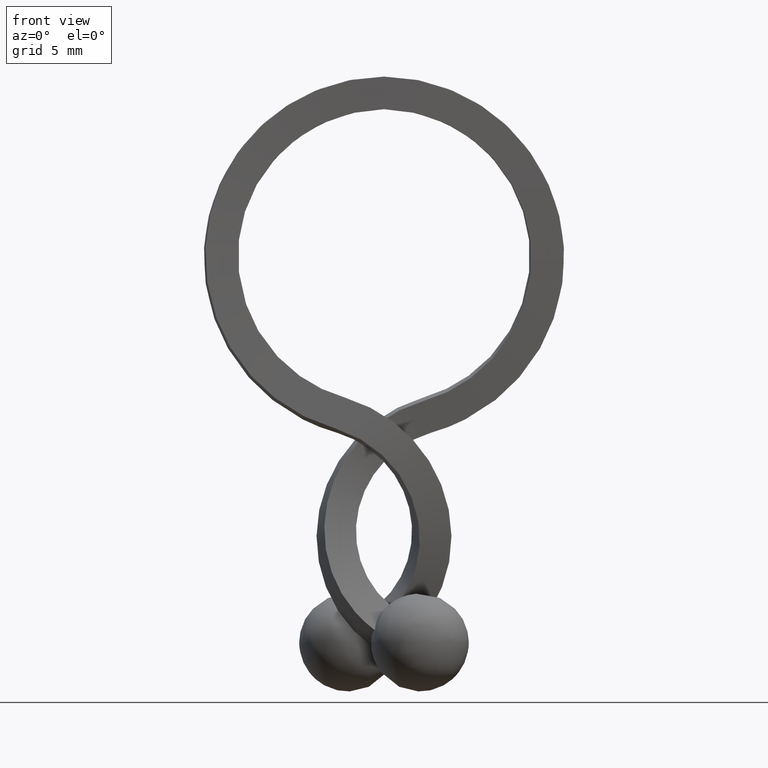
[diagram: clean part render]
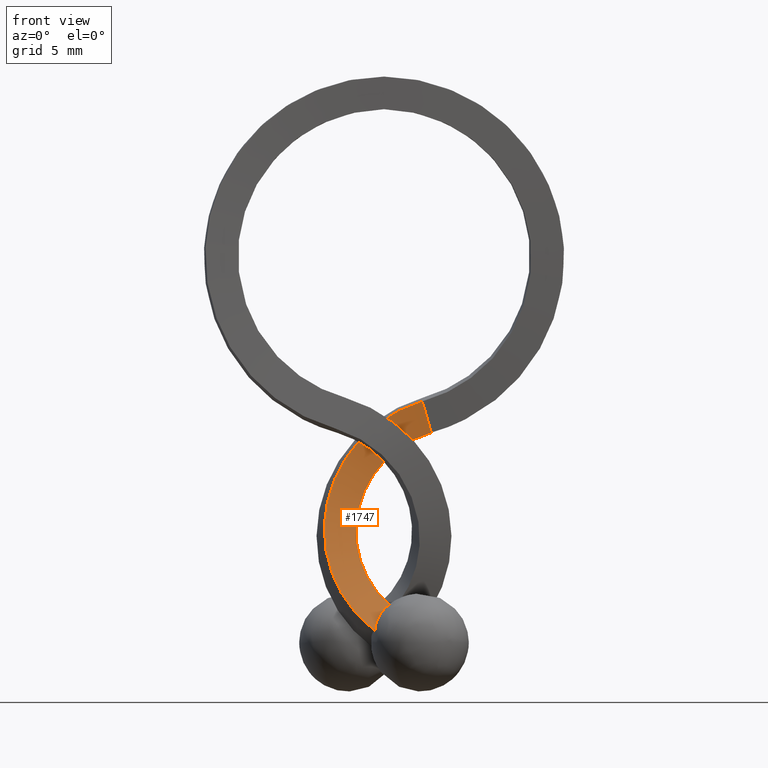
[diagram: same view with one face highlighted and labeled with its STEP entity id]
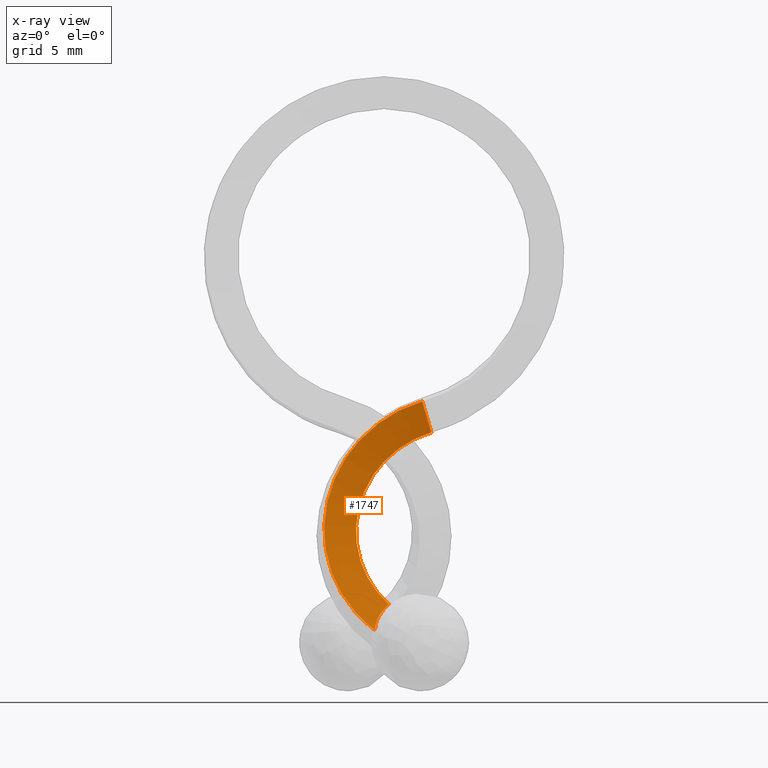
[diagram: x-ray of the same camera — body ghosted, the highlighted face saturated]
A machine part, front view. The second image highlights one B-rep face of the part: STEP entity #1747.
The next image is the same camera in x-ray: the body ghosted, the highlighted face saturated — about 0% of this face is hidden behind the body in this view.
In plain terms, the highlighted face is a freeform B-spline surface patch.
Its self-contained STEP definition (entity closure, byte-faithful):
#207=CARTESIAN_POINT('',(-0.562989896993317,-2.993018793894280,-22.946073593699801));
#208=VERTEX_POINT('',#207);
#247=CARTESIAN_POINT('',(0.318826998031104,-1.991292330400900,-21.365611254917500));
#248=VERTEX_POINT('',#247);
#262=CARTESIAN_POINT('',(0.318826998031104,-1.991292330400900,-21.365611254917500));
#263=CARTESIAN_POINT('',(0.254987021193123,-2.027606866331576,-21.415365773943190));
#264=CARTESIAN_POINT('',(0.194190312748545,-2.064897113913454,-21.467668564391371));
#265=CARTESIAN_POINT('',(0.078609582324111,-2.141398444247728,-21.577313679062151));
#266=CARTESIAN_POINT('',(0.023749002954571,-2.180669582220872,-21.634745300141720));
#267=CARTESIAN_POINT('',(-0.131193199032403,-2.301055194665985,-21.814124364339602));
#268=CARTESIAN_POINT('',(-0.219965570910712,-2.383308522431403,-21.940992873367041));
#269=CARTESIAN_POINT('',(-0.332055683822324,-2.509865839651787,-22.141682061896589));
#270=CARTESIAN_POINT('',(-0.365884398976530,-2.552586264016554,-22.210319979133669));
#271=CARTESIAN_POINT('',(-0.426313912798095,-2.639188689276759,-22.351113633898290));
#272=CARTESIAN_POINT('',(-0.452999293889169,-2.683262658169256,-22.423591017506070));
#273=CARTESIAN_POINT('',(-0.520796711269644,-2.815548652972138,-22.643336727853569));
#274=CARTESIAN_POINT('',(-0.550034096460363,-2.903981628331271,-22.793129962072829));
#275=CARTESIAN_POINT('',(-0.562989896993317,-2.993018793894280,-22.946073593699801));
#276=B_SPLINE_CURVE_WITH_KNOTS('',3,(#262,#263,#264,#265,#266,#267,#268,#269,#270,#271,#272,#273,#274,#275),.UNSPECIFIED.,.F.,.U.,(4,2,2,2,2,2,4),(0.0,0.124999999999999,0.249999999999998,0.499999999999998,0.624999999999999,0.749999999999999,1.0),.UNSPECIFIED.);
#277=EDGE_CURVE('',#248,#208,#276,.T.);
#1202=CARTESIAN_POINT('',(2.343019980547970,-0.026249401664831,-8.919620267446240));
#1203=VERTEX_POINT('',#1202);
#1304=CARTESIAN_POINT('',(2.901770497624195,0.185794630355313,-10.828303356464280));
#1305=VERTEX_POINT('',#1304);
#1306=CARTESIAN_POINT('',(2.343019980547970,-0.026249401664831,-8.919620267446240));
#1307=CARTESIAN_POINT('',(2.390476096541876,-0.008236811523220,-9.081758698906494));
#1308=CARTESIAN_POINT('',(2.437932200781543,0.009775782775392,-9.243897133344509));
#1309=CARTESIAN_POINT('',(2.485389682380470,0.027788348679909,-9.406035168364841));
#1310=CARTESIAN_POINT('',(2.532847163982464,0.045800914585591,-9.568173203395647));
#1311=CARTESIAN_POINT('',(2.580306013627685,0.063813452317270,-9.730310841732020));
#1312=CARTESIAN_POINT('',(2.627767853168932,0.081825923876188,-9.892447613443228));
#1313=CARTESIAN_POINT('',(2.719086018244425,0.116482520989441,-10.204404179540180));
#1314=CARTESIAN_POINT('',(2.810414561498153,0.151138889379695,-10.516357738549470));
#1315=CARTESIAN_POINT('',(2.901770497624195,0.185794630355313,-10.828303356464280));
#1316=B_SPLINE_CURVE_WITH_KNOTS('',3,(#1306,#1307,#1308,#1309,#1310,#1311,#1312,#1313,#1314,#1315),.UNSPECIFIED.,.F.,.U.,(4,3,3,4),(0.0,0.000509692035208,0.001019384070476,0.002000048577367),.UNSPECIFIED.);
#1317=EDGE_CURVE('',#1203,#1305,#1316,.T.);
#1602=CARTESIAN_POINT('',(2.343019980547970,-0.026249401664831,-8.919620267446240));
#1603=CARTESIAN_POINT('',(2.328873158148021,-0.025424552240254,-8.923833127507283));
#1604=CARTESIAN_POINT('',(2.314454788468011,-0.024585064959228,-8.928131868227892));
#1605=CARTESIAN_POINT('',(2.102724740778106,-0.012282224094438,-8.991361900011517));
#1606=CARTESIAN_POINT('',(1.887861882150655,-0.001958220313909,-9.064595574533961));
#1607=CARTESIAN_POINT('',(1.484445463366080,0.013149086828943,-9.220042203482507));
#1608=CARTESIAN_POINT('',(1.285685964906115,0.018477122987230,-9.305505683612408));
#1609=CARTESIAN_POINT('',(0.700010365309183,0.027742017279396,-9.584341388283615));
#1610=CARTESIAN_POINT('',(0.323713400784969,0.024944345095048,-9.800214340787839));
#1611=CARTESIAN_POINT('',(-0.748541599144377,-0.010255868453404,-10.529605563832639));
#1612=CARTESIAN_POINT('',(-1.386859524459401,-0.069622496764861,-11.125009821918690));
#1613=CARTESIAN_POINT('',(-2.980817194532098,-0.346910563989227,-13.153331408402520));
#1614=CARTESIAN_POINT('',(-3.599769519285019,-0.666432502432129,-14.829968625182101));
#1615=CARTESIAN_POINT('',(-3.715702373559793,-1.453695651395375,-18.196599076363089));
#1616=CARTESIAN_POINT('',(-3.212376982986500,-1.919359455819912,-19.877708548537061));
#1617=CARTESIAN_POINT('',(-1.778579756744054,-2.584232713626742,-21.890038046632839));
#1618=CARTESIAN_POINT('',(-1.208975882375264,-2.795219975416260,-22.466446165435251));
#1619=CARTESIAN_POINT('',(-0.562989896993317,-2.993018793894280,-22.946073593699801));
#1620=B_SPLINE_CURVE_WITH_KNOTS('',3,(#1602,#1603,#1604,#1605,#1606,#1607,#1608,#1609,#1610,#1611,#1612,#1613,#1614,#1615,#1616,#1617,#1618,#1619),.UNSPECIFIED.,.F.,.U.,(4,2,2,2,2,2,2,2,4),(-0.002363725979825,0.0,0.031250000000000,0.062500000000000,0.125000000000000,0.250000000000000,0.500000000000000,0.750000000000000,0.869828844565417),.UNSPECIFIED.);
#1621=EDGE_CURVE('',#1203,#208,#1620,.T.);
#1648=CARTESIAN_POINT('',(3.031046235579531,0.178247301782421,-10.789846652980369));
#1649=CARTESIAN_POINT('',(2.832658385266442,0.108273610588086,-10.157232528305631));
#1650=CARTESIAN_POINT('',(2.634270534953358,0.038299919393754,-9.524618403630928));
#1651=CARTESIAN_POINT('',(2.435882684640277,-0.031673771800581,-8.892004278956225));
#1652=CARTESIAN_POINT('',(2.984612750295062,0.180958383505011,-10.803658750317339));
#1653=CARTESIAN_POINT('',(2.786701742206361,0.110958237086650,-10.170896968513199));
#1654=CARTESIAN_POINT('',(2.588790734117672,0.040958090668294,-9.538135186709090));
#1655=CARTESIAN_POINT('',(2.390879726028985,-0.029042055750066,-8.905373404904996));
#1656=CARTESIAN_POINT('',(2.935828042283705,0.183806793798505,-10.818170035292169));
#1657=CARTESIAN_POINT('',(2.739778221201616,0.113699811211099,-10.184846938185739));
#1658=CARTESIAN_POINT('',(2.543728400119547,0.043592828623699,-9.551523841079373));
#1659=CARTESIAN_POINT('',(2.347678579037474,-0.026514153963706,-8.918200743973044));
#1660=CARTESIAN_POINT('',(2.720222783918400,0.196391471020903,-10.882319581714119));
#1661=CARTESIAN_POINT('',(2.514389286534440,0.126834090048751,-10.251997511912620));
#1662=CARTESIAN_POINT('',(2.308555789150435,0.057276709076579,-9.621675442110979));
#1663=CARTESIAN_POINT('',(2.102722291766435,-0.012280671895573,-8.991353372309149));
#1664=CARTESIAN_POINT('',(2.575560613172110,0.203242635793602,-10.932044718042460));
#1665=CARTESIAN_POINT('',(2.346326892726685,0.134842863874018,-10.309558849340020));
#1666=CARTESIAN_POINT('',(2.117093172281220,0.066443091954435,-9.687072980637739));
#1667=CARTESIAN_POINT('',(1.887859451835715,-0.001956679965148,-9.064587111935468));
#1668=CARTESIAN_POINT('',(2.264002229312440,0.215072593945432,-11.051413841332041));
#1669=CARTESIAN_POINT('',(2.004149176609935,0.147765263628792,-10.440953852134720));
#1670=CARTESIAN_POINT('',(1.744296123907475,0.080457933312152,-9.830493862937249));
#1671=CARTESIAN_POINT('',(1.484443071205060,0.013150602995512,-9.220033873739761));
#1672=CARTESIAN_POINT('',(2.110486528339925,0.219270399111323,-11.117076609692560));
#1673=CARTESIAN_POINT('',(1.835552216577240,0.152339808168684,-10.513216881321300));
#1674=CARTESIAN_POINT('',(1.560617904814390,0.085409217226035,-9.909357152950072));
#1675=CARTESIAN_POINT('',(1.285683593051620,0.018478626283397,-9.305497424579000));
#1676=CARTESIAN_POINT('',(1.658086798651795,0.226678837077917,-11.331403843927680));
#1677=CARTESIAN_POINT('',(1.338727218394392,0.160367051299382,-10.749047013813859));
#1678=CARTESIAN_POINT('',(1.019367638137330,0.094055265520870,-10.166690183700061));
#1679=CARTESIAN_POINT('',(0.700008057880100,0.027743479742336,-9.584333353585901));
#1680=CARTESIAN_POINT('',(1.367362590013204,0.224692677029262,-11.497450069663060));
#1681=CARTESIAN_POINT('',(1.019478773672042,0.158110377141968,-10.931702203760700));
#1682=CARTESIAN_POINT('',(0.671594957330889,0.091528077254717,-10.365954337858019));
#1683=CARTESIAN_POINT('',(0.323711140989563,0.024945777367466,-9.800206471955329));
#1684=CARTESIAN_POINT('',(0.538768817038835,0.198041538197333,-12.058784693326860));
#1685=CARTESIAN_POINT('',(0.109664643429024,0.128609513959701,-11.549055873966200));
#1686=CARTESIAN_POINT('',(-0.319439530180779,0.059177489721987,-11.039327054606220));
#1687=CARTESIAN_POINT('',(-0.748543703790248,-0.010254534515727,-10.529598235246240));
#1688=CARTESIAN_POINT('',(0.045252883617212,0.152562491118261,-12.517358232088700));
#1689=CARTESIAN_POINT('',(-0.432118580705584,0.078501247835988,-12.053239791502421));
#1690=CARTESIAN_POINT('',(-0.909490045028033,0.004440004553886,-11.589121350916139));
#1691=CARTESIAN_POINT('',(-1.386861509350822,-0.069621238728302,-11.125002910329201));
#1692=CARTESIAN_POINT('',(-1.187958319515892,-0.060489239282566,-14.080416516568020));
#1693=CARTESIAN_POINT('',(-1.785578475795645,-0.155962677459482,-13.771386297228119));
#1694=CARTESIAN_POINT('',(-2.383198632076065,-0.251436115636734,-13.462356077888240));
#1695=CARTESIAN_POINT('',(-2.980818788355810,-0.346909553813818,-13.153325858549699));
#1696=CARTESIAN_POINT('',(-1.668210497456420,-0.306543402091836,-15.373505812691549));
#1697=CARTESIAN_POINT('',(-2.312063935028910,-0.426506162814358,-15.192325251855699));
#1698=CARTESIAN_POINT('',(-2.955917372601390,-0.546468923536540,-15.011144691017151));
#1699=CARTESIAN_POINT('',(-3.599770810173870,-0.666431684258722,-14.829964130178601));
#1700=CARTESIAN_POINT('',(-1.762909135175490,-0.913430108636899,-17.971670407942650));
#1701=CARTESIAN_POINT('',(-2.413840453101365,-1.093518471749250,-18.046645800390749));
#1702=CARTESIAN_POINT('',(-3.064771771027230,-1.273606834861940,-18.121621192841499));
#1703=CARTESIAN_POINT('',(-3.715703088953105,-1.453695197974626,-18.196596585292301));
#1704=CARTESIAN_POINT('',(-1.377105707061504,-1.272661218157010,-19.269889749202200));
#1705=CARTESIAN_POINT('',(-1.988862947153135,-1.488227203500672,-19.472495499889600));
#1706=CARTESIAN_POINT('',(-2.600620187246110,-1.703793188843995,-19.675101250577050));
#1707=CARTESIAN_POINT('',(-3.212377427337735,-1.919359174187320,-19.877707001261751));
#1708=CARTESIAN_POINT('',(-0.258158140342515,-1.793157355170532,-20.847141659368049));
#1709=CARTESIAN_POINT('',(-0.758202217041866,-2.059985297542053,-21.204265719632481));
#1710=CARTESIAN_POINT('',(-1.258246293740533,-2.326813239913740,-21.561389779896889));
#1711=CARTESIAN_POINT('',(-1.758290370439877,-2.593641182285430,-21.918513840162682));
#1712=CARTESIAN_POINT('',(0.203368077219351,-1.963037535131555,-21.309674210169810));
#1713=CARTESIAN_POINT('',(-0.250761868283334,-2.246571961243377,-21.711999446169202));
#1714=CARTESIAN_POINT('',(-0.704891813785556,-2.530106387356202,-22.114324682167879));
#1715=CARTESIAN_POINT('',(-1.159021759289556,-2.813640813467073,-22.516649918172959));
#1716=CARTESIAN_POINT('',(0.728212988242898,-2.121558836077095,-21.690190398901969));
#1717=CARTESIAN_POINT('',(0.326169757955065,-2.420658769189115,-22.129580227879678));
#1718=CARTESIAN_POINT('',(-0.075873472332585,-2.719758702302512,-22.568970056856340));
#1719=CARTESIAN_POINT('',(-0.477916702622394,-3.018858635412981,-23.008359885841561));
#1720=B_SPLINE_SURFACE_WITH_KNOTS('',3,3,((#1648,#1652,#1656,#1660,#1664,#1668,#1672,#1676,#1680,#1684,#1688,#1692,#1696,#1700,#1704,#1708,#1712,#1716),(#1649,#1653,#1657,#1661,#1665,#1669,#1673,#1677,#1681,#1685,#1689,#1693,#1697,#1701,#1705,#1709,#1713,#1717),(#1650,#1654,#1658,#1662,#1666,#1670,#1674,#1678,#1682,#1686,#1690,#1694,#1698,#1702,#1706,#1710,#1714,#1718),(#1651,#1655,#1659,#1663,#1667,#1671,#1675,#1679,#1683,#1687,#1691,#1695,#1699,#1703,#1707,#1711,#1715,#1719)),.UNSPECIFIED.,.F.,.F.,.U.,(4,4),(4,2,2,2,2,2,2,2,4),(0.0,2.000023046402882),(0.0,0.161261682496622,0.820989826852616,1.480717971208610,2.800174259920598,5.439086837344573,10.716911992192530,15.994737147040480,18.634964047469360),.UNSPECIFIED.);
#1721=ORIENTED_EDGE('',*,*,#277,.F.);
#1722=CARTESIAN_POINT('',(2.901770497624195,0.185794630355313,-10.828303356464280));
#1723=CARTESIAN_POINT('',(2.898981045707082,0.185957514785972,-10.829133225665160));
#1724=CARTESIAN_POINT('',(2.896216127516216,0.186118904204761,-10.829955862708930));
#1725=CARTESIAN_POINT('',(2.720222783918400,0.196391471020903,-10.882319581714119));
#1726=CARTESIAN_POINT('',(2.575560613172110,0.203242635793602,-10.932044718042460));
#1727=CARTESIAN_POINT('',(2.264002229312440,0.215072593945432,-11.051413841332041));
#1728=CARTESIAN_POINT('',(2.110486528339925,0.219270399111323,-11.117076609692560));
#1729=CARTESIAN_POINT('',(1.658086798651795,0.226678837077917,-11.331403843927680));
#1730=CARTESIAN_POINT('',(1.367362590013204,0.224692677029262,-11.497450069663060));
#1731=CARTESIAN_POINT('',(0.538768817038835,0.198041538197333,-12.058784693326860));
#1732=CARTESIAN_POINT('',(0.045252883617212,0.152562491118261,-12.517358232088700));
#1733=CARTESIAN_POINT('',(-1.187958319515892,-0.060489239282566,-14.080416516568020));
#1734=CARTESIAN_POINT('',(-1.668210497456420,-0.306543402091836,-15.373505812691549));
#1735=CARTESIAN_POINT('',(-1.762909135175490,-0.913430108636899,-17.971670407942650));
#1736=CARTESIAN_POINT('',(-1.377105707061504,-1.272661218157010,-19.269889749202200));
#1737=CARTESIAN_POINT('',(-0.358541591760554,-1.746462406955594,-20.705642633669822));
#1738=CARTESIAN_POINT('',(-0.038576748783653,-1.871359645571904,-21.056198669892730));
#1739=CARTESIAN_POINT('',(0.318826998031104,-1.991292330400900,-21.365611254917500));
#1740=B_SPLINE_CURVE_WITH_KNOTS('',3,(#1722,#1723,#1724,#1725,#1726,#1727,#1728,#1729,#1730,#1731,#1732,#1733,#1734,#1735,#1736,#1737,#1738,#1739),.UNSPECIFIED.,.F.,.U.,(4,2,2,2,2,2,2,2,4),(-0.000493855923331,0.0,0.031250000000000,0.062500000000000,0.125000000000000,0.250000000000000,0.500000000000000,0.750000000000000,0.841414528428668),.UNSPECIFIED.);
#1741=EDGE_CURVE('',#1305,#248,#1740,.T.);
#1742=ORIENTED_EDGE('',*,*,#1741,.F.);
#1743=ORIENTED_EDGE('',*,*,#1317,.F.);
#1744=ORIENTED_EDGE('',*,*,#1621,.T.);
#1745=EDGE_LOOP('',(#1721,#1742,#1743,#1744));
#1746=FACE_OUTER_BOUND('',#1745,.T.);
#1747=ADVANCED_FACE('',(#1746),#1720,.T.);